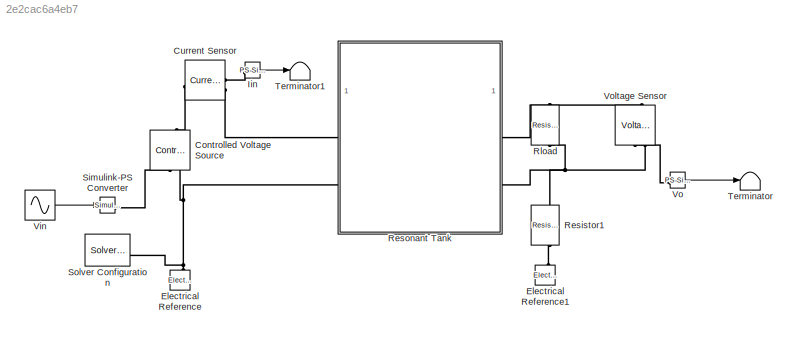
MODEL slx_2e2cac6a4eb7
KIND model
CONFIG AbsTol = auto
CONFIG EnableMultiTasking = off
CONFIG FixedStep = auto
CONFIG MaxStep = auto
CONFIG MinStep = auto
CONFIG PreLoadFcn = if ~exist('LLCDesign', 'var')\nLLCConverterDefaultInputParameters;\ndisp("default value loaded")\nend
CONFIG RelTol = 1e-3
CONFIG SampleTimeConstraint = Unconstrained
CONFIG SolverName = daessc
CONFIG StartTime = 0.0
CONFIG StopTime = 0.5
WORKSPACE source: mxarray member
WORKSPACE LLCDesign: object (value not decoded)
BLOCK [Reference] Controlled Voltage Source  REF=fl_lib/Electrical/Electrical Sources/Controlled Voltage
Source
  NameLocation = right
  SourceBlock = fl_lib/Electrical/Electrical Sources/Controlled Voltage\nSource
  SourceType = Controlled Voltage\nSource
BLOCK [Reference] Current Sensor  REF=fl_lib/Electrical/Electrical Sensors/Current Sensor
  SourceBlock = fl_lib/Electrical/Electrical Sensors/Current Sensor
  SourceType = Current Sensor
BLOCK [Reference] Electrical Reference  REF=fl_lib/Electrical/Electrical Elements/Electrical Reference
  NameLocation = right
  SourceBlock = fl_lib/Electrical/Electrical Elements/Electrical Reference
  SourceType = Electrical Reference
BLOCK [Reference] Electrical Reference1  REF=fl_lib/Electrical/Electrical Elements/Electrical Reference
  NameLocation = right
  SourceBlock = fl_lib/Electrical/Electrical Elements/Electrical Reference
  SourceType = Electrical Reference
BLOCK [Reference] Iin  REF=nesl_utility/PS-Simulink
Converter
  SourceBlock = nesl_utility/PS-Simulink\nConverter
  SourceType = PS-Simulink\nConverter
BLOCK [Reference] Resistor1  REF=fl_lib/Electrical/Electrical Elements/Resistor
  NameLocation = left
  SourceBlock = fl_lib/Electrical/Electrical Elements/Resistor
  SourceType = Resistor
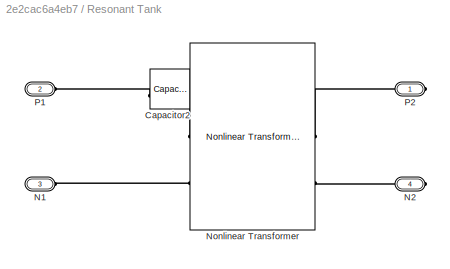
BLOCK [SubSystem] Resonant Tank
BLOCK [Reference] Resonant Tank/Capacitor2  REF=fl_lib/Electrical/Electrical Elements/Capacitor
  SourceBlock = fl_lib/Electrical/Electrical Elements/Capacitor
  SourceType = Capacitor
BLOCK [PMIOPort] Resonant Tank/N1
  Port = 3
  Side = Left
BLOCK [PMIOPort] Resonant Tank/N2
  Port = 4
  Side = Right
BLOCK [Reference] Resonant Tank/Nonlinear Transformer  REF=ee_lib/Passive/Transformers/Nonlinear
Transformer
  SourceBlock = ee_lib/Passive/Transformers/Nonlinear\nTransformer
  SourceType = Nonlinear\nTransformer
BLOCK [PMIOPort] Resonant Tank/P1
  Port = 2
  Side = Left
BLOCK [PMIOPort] Resonant Tank/P2
  Side = Right
BLOCK [Reference] Rload  REF=fl_lib/Electrical/Electrical Elements/Resistor
  NameLocation = right
  SourceBlock = fl_lib/Electrical/Electrical Elements/Resistor
  SourceType = Resistor
BLOCK [Reference] Simulink-PS Converter  REF=nesl_utility/Simulink-PS
Converter
  SourceBlock = nesl_utility/Simulink-PS\nConverter
  SourceType = Simulink-PS\nConverter
BLOCK [Reference] Solver Configuration  REF=nesl_utility/Solver
Configuration
  SourceBlock = nesl_utility/Solver\nConfiguration
  SourceType = Solver\nConfiguration
BLOCK [Terminator] Terminator
BLOCK [Terminator] Terminator1
BLOCK [Sin] Vin
  SampleTime = 0
BLOCK [Reference] Vo  REF=nesl_utility/PS-Simulink
Converter
  SourceBlock = nesl_utility/PS-Simulink\nConverter
  SourceType = PS-Simulink\nConverter
BLOCK [Reference] Voltage Sensor  REF=fl_lib/Electrical/Electrical Sensors/Voltage Sensor
  NameLocation = right
  SourceBlock = fl_lib/Electrical/Electrical Sensors/Voltage Sensor
  SourceType = Voltage Sensor
LINE Iin:1 -> Terminator1:1
LINE Vin:1 -> Simulink-PS Converter:1
LINE Vo:1 -> Terminator:1
PLINE Controlled Voltage Source:LConn1 -- Current Sensor:LConn1
PLINE Controlled Voltage Source:RConn1 -- Simulink-PS Converter:RConn1
PNET net1: Controlled Voltage Source:RConn2 -- Electrical Reference:LConn1 -- Resonant Tank:LConn2 -- Solver Configuration:RConn1
PLINE Current Sensor:RConn1 -- Iin:LConn1
PLINE Current Sensor:RConn2 -- Resonant Tank:LConn1
PLINE Electrical Reference1:LConn1 -- Resistor1:RConn1
PNET net2: Resistor1:LConn1 -- Resonant Tank:RConn2 -- Rload:RConn1 -- Voltage Sensor:RConn2
PLINE Resonant Tank/Capacitor2:LConn1 -- Resonant Tank/P1:RConn1
PLINE Resonant Tank/Capacitor2:RConn1 -- Resonant Tank/Nonlinear Transformer:LConn1
PLINE Resonant Tank/N1:RConn1 -- Resonant Tank/Nonlinear Transformer:LConn2
PLINE Resonant Tank/N2:RConn1 -- Resonant Tank/Nonlinear Transformer:RConn2
PLINE Resonant Tank/Nonlinear Transformer:RConn1 -- Resonant Tank/P2:RConn1
PNET net3: Resonant Tank:RConn1 -- Rload:LConn1 -- Voltage Sensor:LConn1
PLINE Vo:LConn1 -- Voltage Sensor:RConn1
note: PNET lines group multi-terminal physical nets as a canonical sorted terminal list (undirected conserving connections); 2-terminal nets keep the pairwise PLINE form
